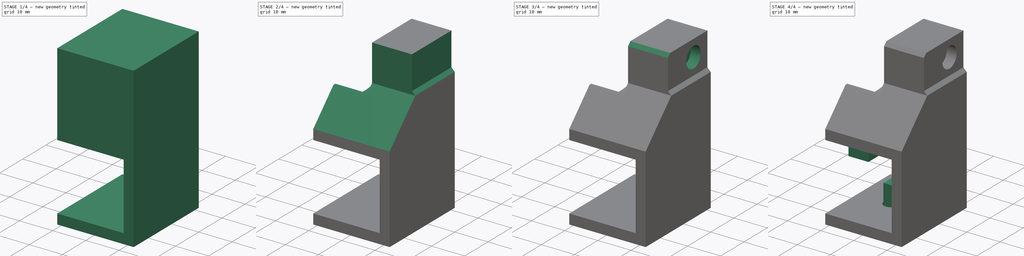
[diagram: build sequence overview — one tinted view per stage of 4, left to right]
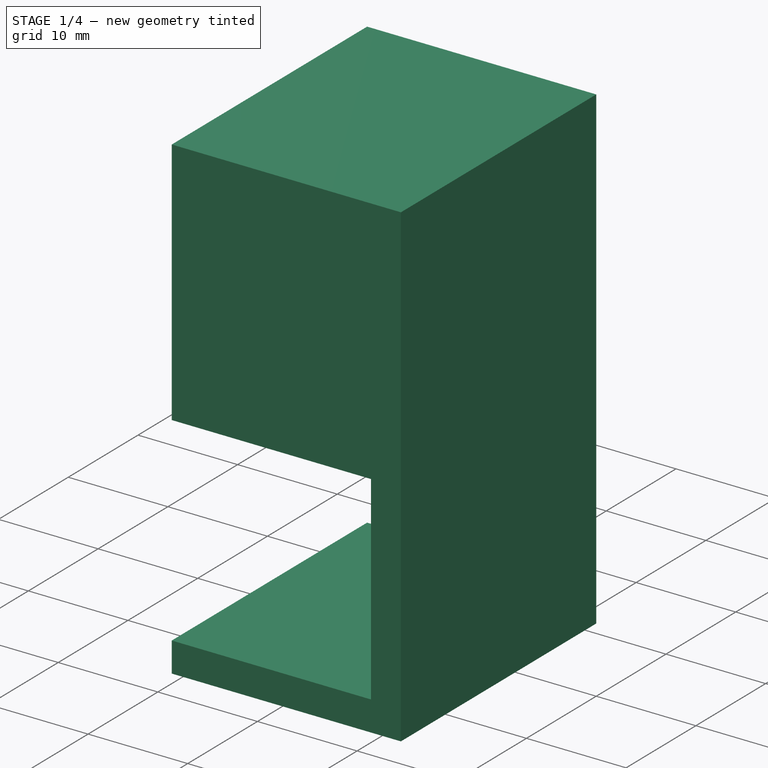
[diagram: stage 1 of 4 — iso view after this stage's code; geometry added in this stage tinted green]
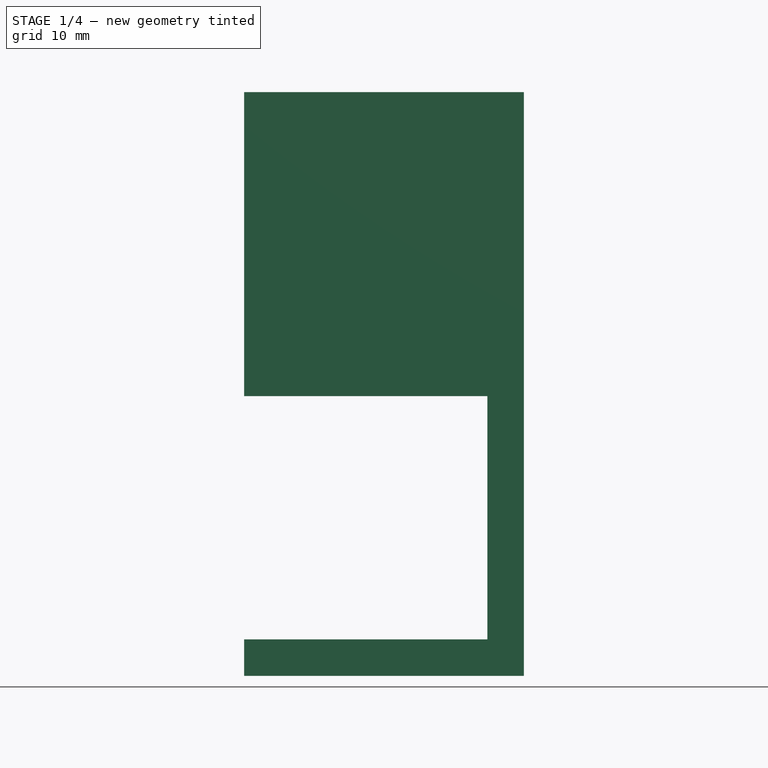
[diagram: stage 1 of 4 — front view after this stage's code; geometry added in this stage tinted green]
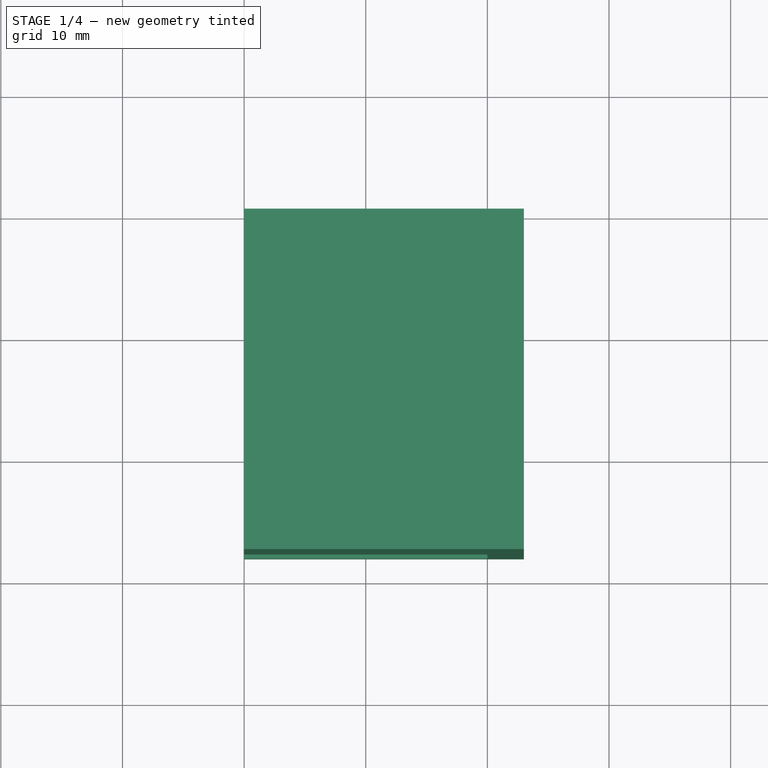
[diagram: stage 1 of 4 — top view after this stage's code; geometry added in this stage tinted green]
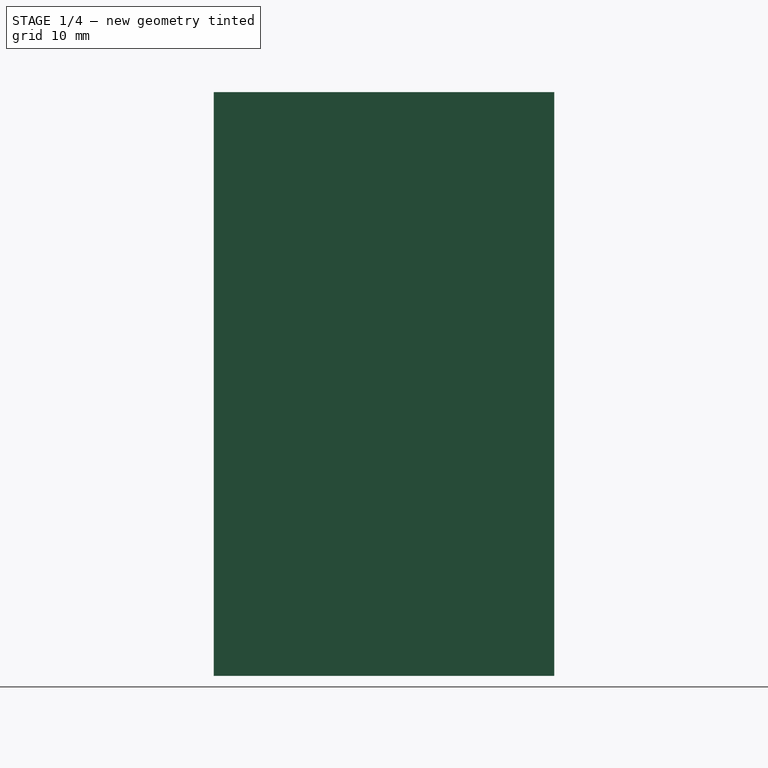
[diagram: stage 1 of 4 — right view after this stage's code; geometry added in this stage tinted green]
FCSTD DOCUMENT  (FreeCAD 0.14R3692 (Git))
Label: hinge-inner
License: CC-BY 3.0
LicenseURL: http://creativecommons.org/licenses/by/3.0/
objects: Sketcher::SketchObject×8, PartDesign::Pocket×6, PartDesign::Pad×2, Part::Feature×2, Part::Box×1, Part::Thickness×1, Part::Chamfer×1, App::DocumentObjectGroup×1
note: 29 computed .brp shape members not serialized (recipe doc carries the construction recipe); baked Part::Feature solids carry a one-line shape summary decoded from their .brp

FEATURE [Part::Box] Box  label="body-cube"
  Height = 20
  Length = 20
  Placement = pos=(0,-28,0) rot=(0,0,1;0rad)
  Width = 28
FEATURE [Part::Thickness] Thickness  label="body-hickness"
  Faces = -> Box [Face1,Face3,Face4]
  Intersection = false
  Join = 2
  Mode = 0
  SelfIntersection = false
  Value = 3
FEATURE [Sketcher::SketchObject] Sketch  label="hinge-body-sketch"
  Placement = pos=(0,0,23) rot=(0,0,1;0rad)
  Support = -> Thickness [Face10]
  sketch-geometry (4):
    g0: LineSegment StartX=0 StartY=0 StartZ=0 EndX=23 EndY=0 EndZ=0
    g1: LineSegment StartX=23 StartY=0 StartZ=0 EndX=23 EndY=-28 EndZ=0
    g2: LineSegment StartX=23 StartY=-28 StartZ=0 EndX=0 EndY=-28 EndZ=0
    g3: LineSegment StartX=0 StartY=-28 StartZ=0 EndX=0 EndY=0 EndZ=0
  constraints (11):
    c: Coincident(g0,g1)
    c: Coincident(g1,g2)
    c: Coincident(g2,g3)
    c: Coincident(g3,g0)
    c: Horizontal(g0)
    c: Horizontal(g2)
    c: Vertical(g1)
    c: Vertical(g3)
    c: Coincident(g0,g-1)
    c: DistanceX(g0) = 23
    c: DistanceY(g3) = 28
FEATURE [PartDesign::Pad] Pad  label="hinge-body-pad"
  Length = 22
  Length2 = 100
  Sketch = -> Sketch
  Type = 0
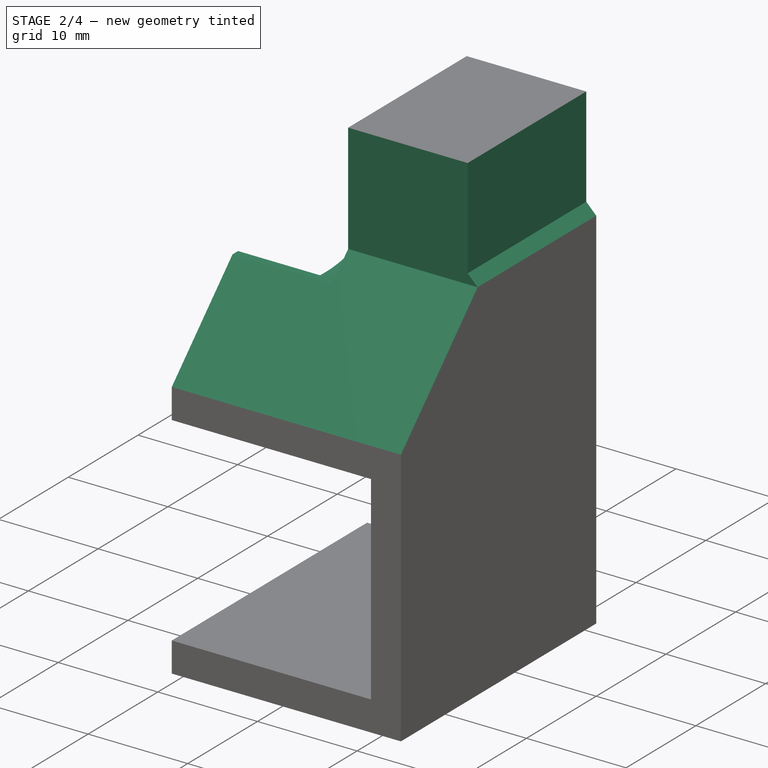
[diagram: stage 2 of 4 — iso view after this stage's code; geometry added in this stage tinted green]
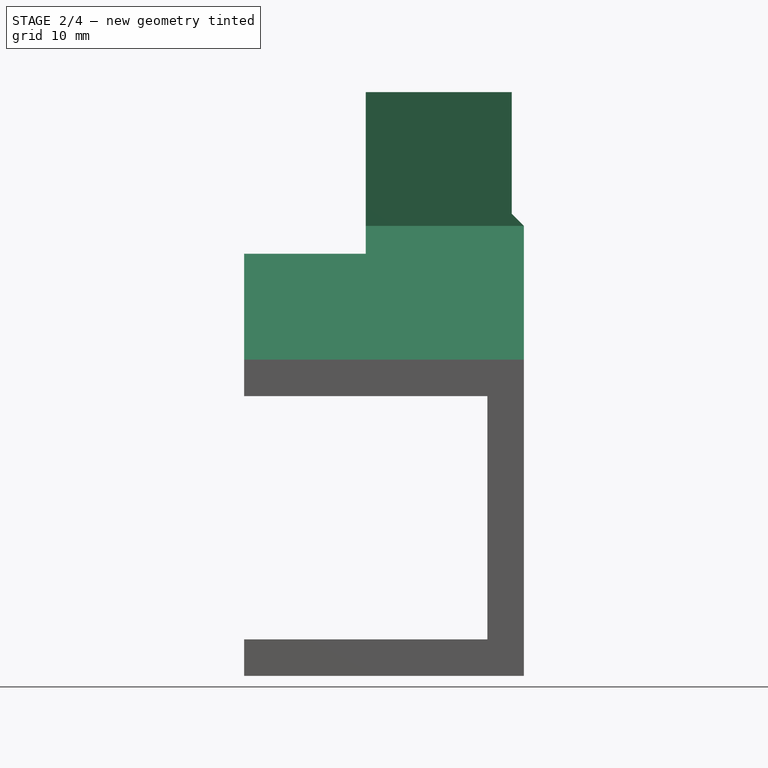
[diagram: stage 2 of 4 — front view after this stage's code; geometry added in this stage tinted green]
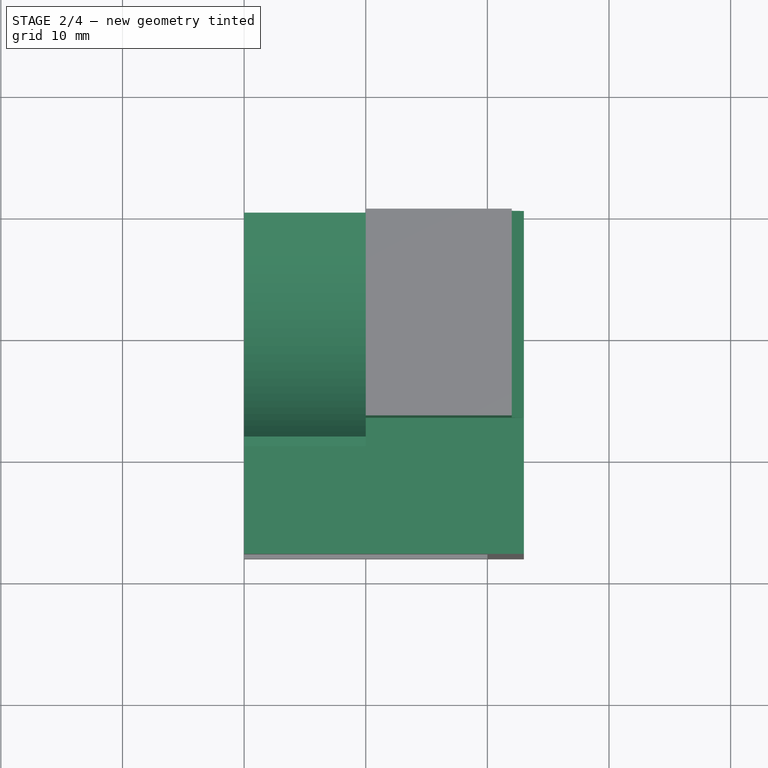
[diagram: stage 2 of 4 — top view after this stage's code; geometry added in this stage tinted green]
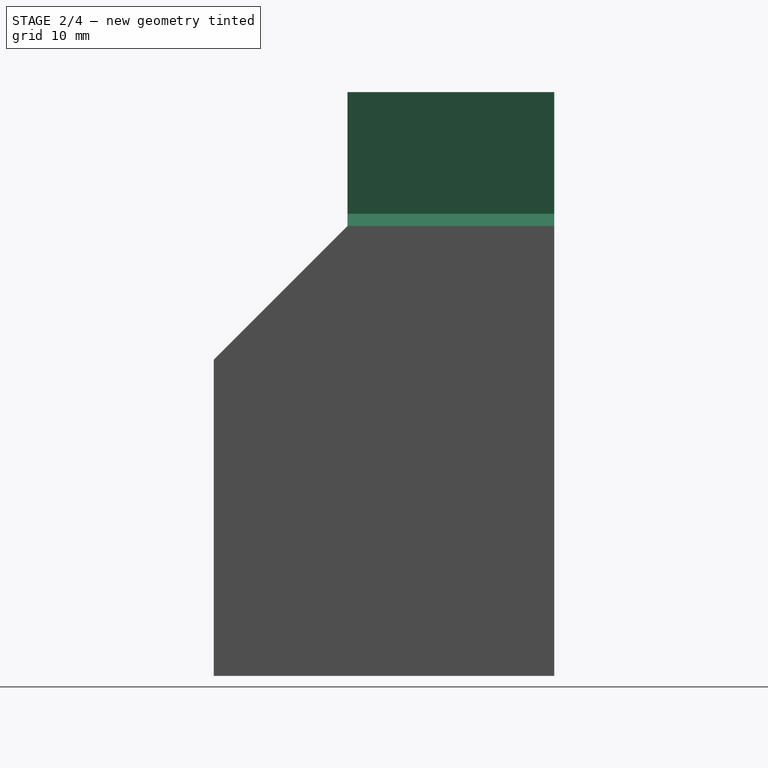
[diagram: stage 2 of 4 — right view after this stage's code; geometry added in this stage tinted green]
FEATURE [Sketcher::SketchObject] Sketch001  label="hinge-body-cutout-sketch"
  Placement = pos=(23,0,0) rot=(0.57735,0.57735,0.57735;2.0944rad)
  Support = -> Pad [Face13]
  sketch-geometry (4):
    g0: LineSegment StartX=-17 StartY=45 StartZ=0 EndX=-17 EndY=34 EndZ=0
    g1: LineSegment StartX=-17 StartY=34 StartZ=0 EndX=-28 EndY=23 EndZ=0
    g2: LineSegment StartX=-28 StartY=23 StartZ=0 EndX=-28 EndY=45 EndZ=0
    g3: LineSegment StartX=-28 StartY=45 StartZ=0 EndX=-17 EndY=45 EndZ=0
  constraints (12):
    c: Coincident(g0,g1)
    c: Coincident(g1,g2)
    c: Coincident(g2,g3)
    c: Coincident(g3,g0)
    c: Horizontal(g3)
    c: Vertical(g2)
    c: Angle(g0,g1) = 2.35619
    c: DistanceX(g-1,g2) = -28
    c: DistanceY(g-1,g2) = 45
    c: Vertical(g0)
    c: DistanceY(g2) = 22
    c: DistanceX(g3) = 11
FEATURE [PartDesign::Pocket] Pocket  label="hinge-body-cutout-pocket"
  Length = 23
  Sketch = -> Sketch001
  Type = 0
FEATURE [Sketcher::SketchObject] Sketch002  label="hinge-head-recess-sketch"
  Placement = pos=(0,0,0) rot=(0.57735,-0.57735,-0.57735;2.0944rad)
  Support = -> Pocket [Face12]
  sketch-geometry (3):
    g0: ArcOfCircle CenterX=6 CenterY=40 CenterZ=0 NormalX=0 NormalY=0 NormalZ=1 Radius=15 StartAngle=2.61681e-07 EndAngle=5.6975
    g1: LineSegment StartX=21 StartY=40 StartZ=0 EndX=21 EndY=31.7084 EndZ=0
    g2: LineSegment StartX=21 StartY=31.7084 StartZ=0 EndX=18.5 EndY=31.7084 EndZ=0
  constraints (10):
    c: DistanceY(g-1,g0) = 40
    c: DistanceX(g-1,g0) = 6
    c: Radius(g0) = 15
    c: Coincident(g1,g2)
    c: Vertical(g1)
    c: Horizontal(g2)
    c: Coincident(g1,g0)
    c: Coincident(g2,g0)
    c: Tangent(g1,g0)
    c: DistanceX(g2) = -2.5
FEATURE [PartDesign::Pocket] Pocket001  label="hinge-head-recess-pocket"
  Length = 10
  Sketch = -> Sketch002
  Type = 0
FEATURE [Sketcher::SketchObject] Sketch003  label="hinge-head-cutout-sketch"
  Placement = pos=(0,-17,0) rot=(1,0,0;1.5708rad)
  Support = -> Pocket001 [Face15]
  sketch-geometry (4):
    g0: LineSegment StartX=22 StartY=45 StartZ=0 EndX=23 EndY=45 EndZ=0
    g1: LineSegment StartX=23 StartY=45 StartZ=0 EndX=23 EndY=34 EndZ=0
    g2: LineSegment StartX=23 StartY=34 StartZ=0 EndX=22 EndY=35 EndZ=0
    g3: LineSegment StartX=22 StartY=35 StartZ=0 EndX=22 EndY=45 EndZ=0
  constraints (12):
    c: Coincident(g0,g1)
    c: Coincident(g1,g2)
    c: Coincident(g2,g3)
    c: Coincident(g3,g0)
    c: Horizontal(g0)
    c: Vertical(g1)
    c: Vertical(g3)
    c: DistanceY(g-1,g0) = 45
    c: DistanceY(g1) = -11
    c: DistanceX(g0) = 1
    c: DistanceX(g-1,g0) = 23
    c: Angle(g1,g2) = 0.785398
FEATURE [PartDesign::Pocket] Pocket006  label="hinge-head-cutout-pocket"
  Length = 17
  Sketch = -> Sketch003
  Type = 0
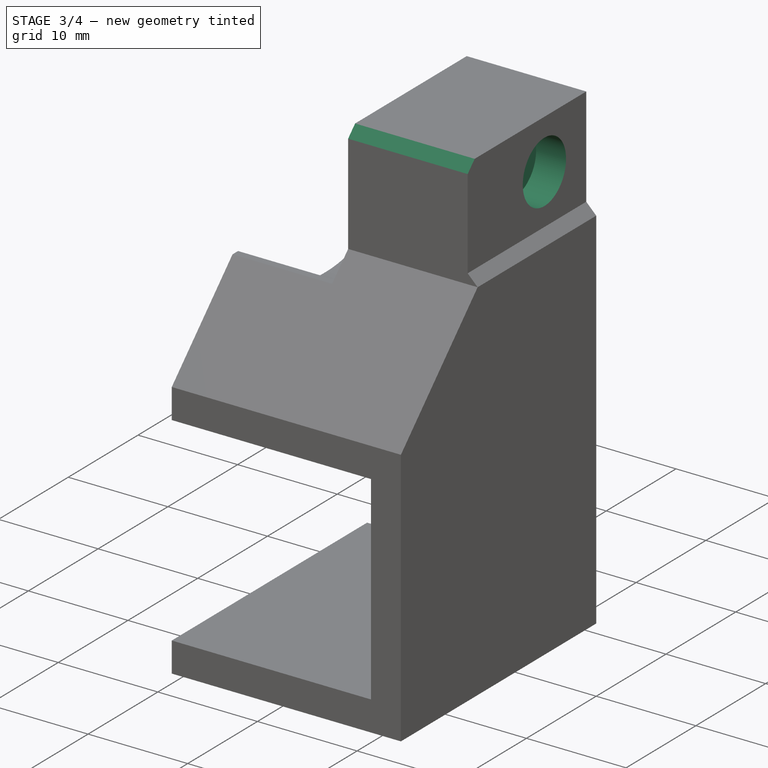
[diagram: stage 3 of 4 — iso view after this stage's code; geometry added in this stage tinted green]
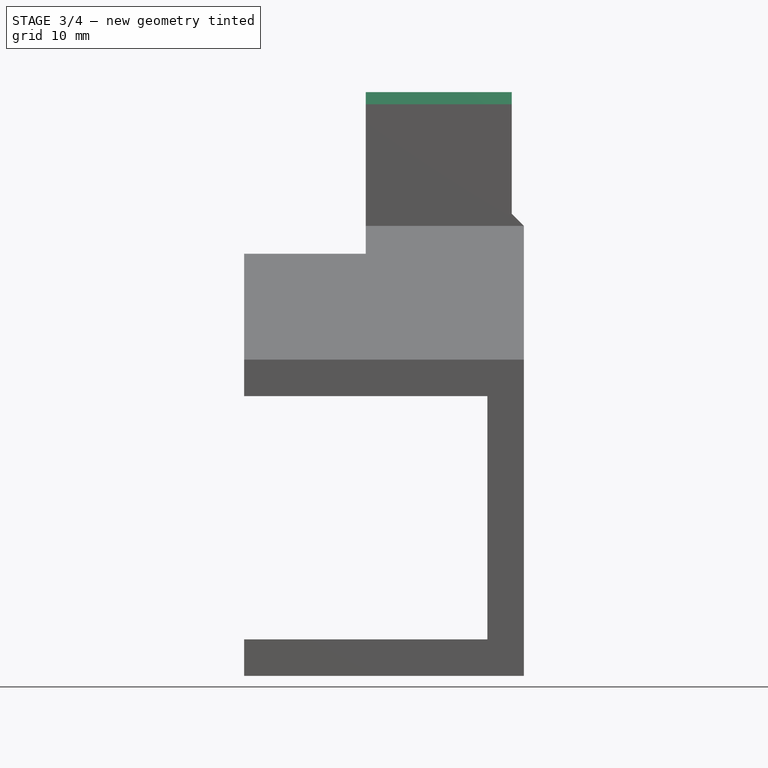
[diagram: stage 3 of 4 — front view after this stage's code; geometry added in this stage tinted green]
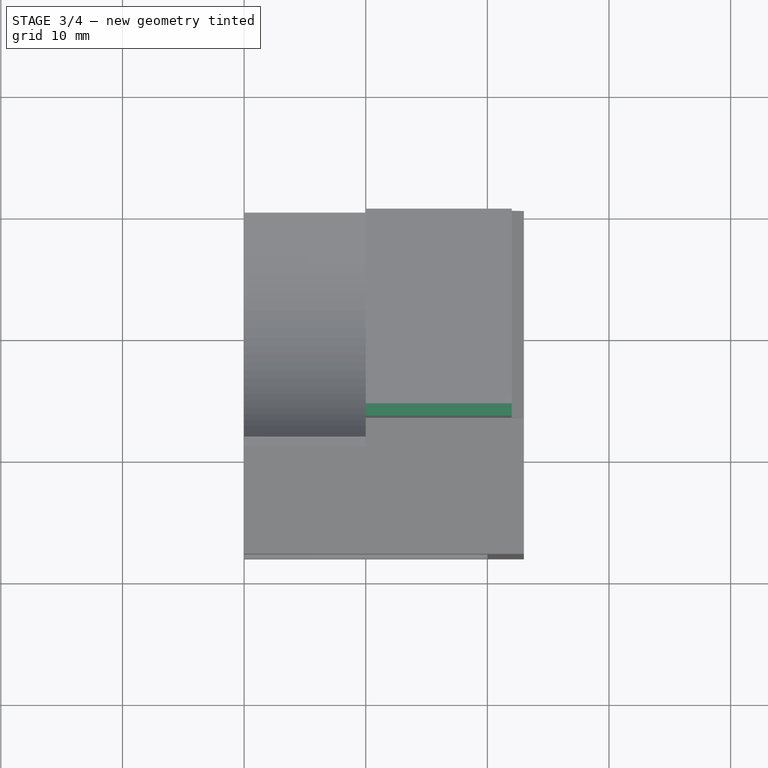
[diagram: stage 3 of 4 — top view after this stage's code; geometry added in this stage tinted green]
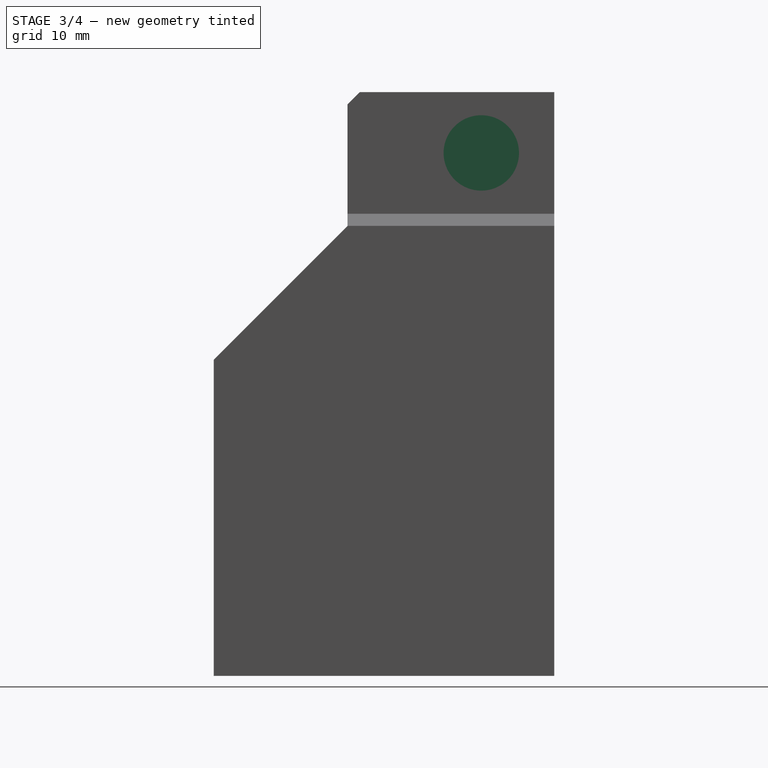
[diagram: stage 3 of 4 — right view after this stage's code; geometry added in this stage tinted green]
FEATURE [Part::Chamfer] Chamfer  label="hinge-head-chamfer"
  Base = -> Pocket006
  Edges = 1 edges r=1: [Edge45]
FEATURE [Sketcher::SketchObject] Sketch004  label="hinge-screw-head-sketch"
  Placement = pos=(22,0,0) rot=(0.57735,0.57735,0.57735;2.0944rad)
  Support = -> Chamfer [Face9]
  sketch-geometry (1):
    g0: Circle CenterX=-6 CenterY=40 CenterZ=0 NormalX=0 NormalY=0 NormalZ=1 Radius=3.1
  constraints (3):
    c: DistanceY(g-1,g0) = 40
    c: DistanceX(g-1,g0) = -6
    c: Radius(g0) = 3.1
FEATURE [PartDesign::Pocket] Pocket003  label="hinge-screw-head-pocket"
  Length = 3
  Sketch = -> Sketch004
  Type = 0
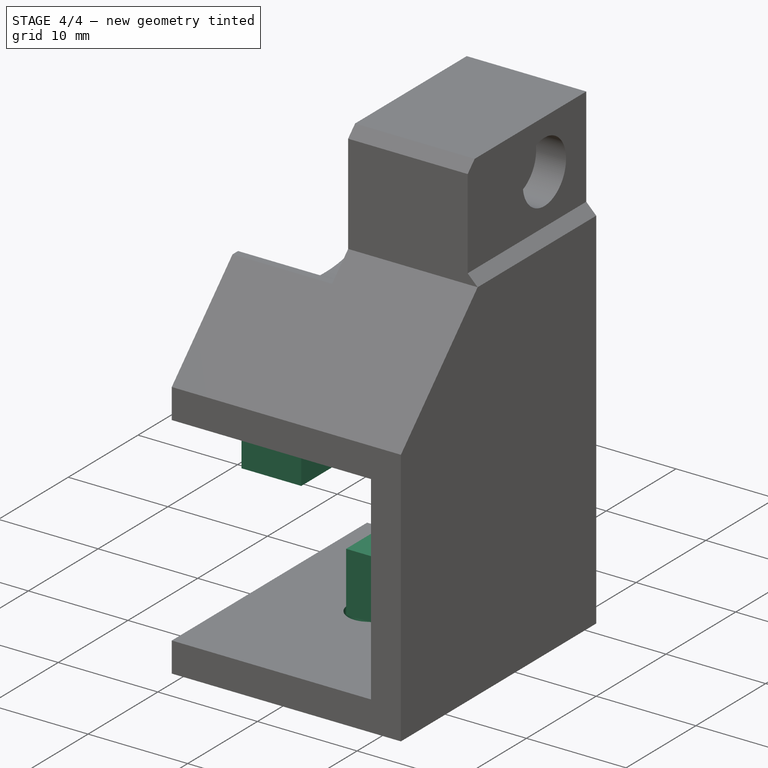
[diagram: stage 4 of 4 — iso view after this stage's code; geometry added in this stage tinted green]
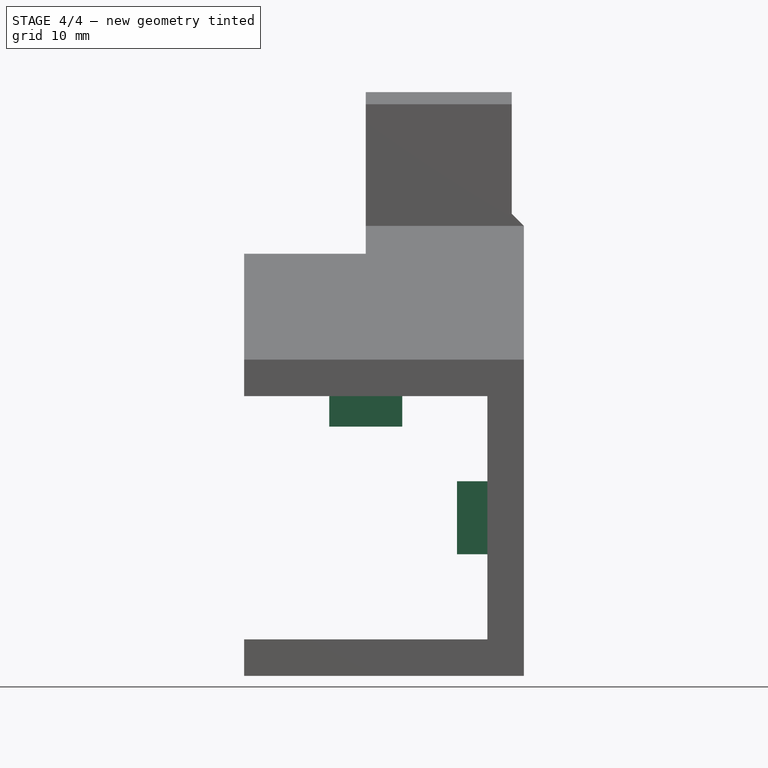
[diagram: stage 4 of 4 — front view after this stage's code; geometry added in this stage tinted green]
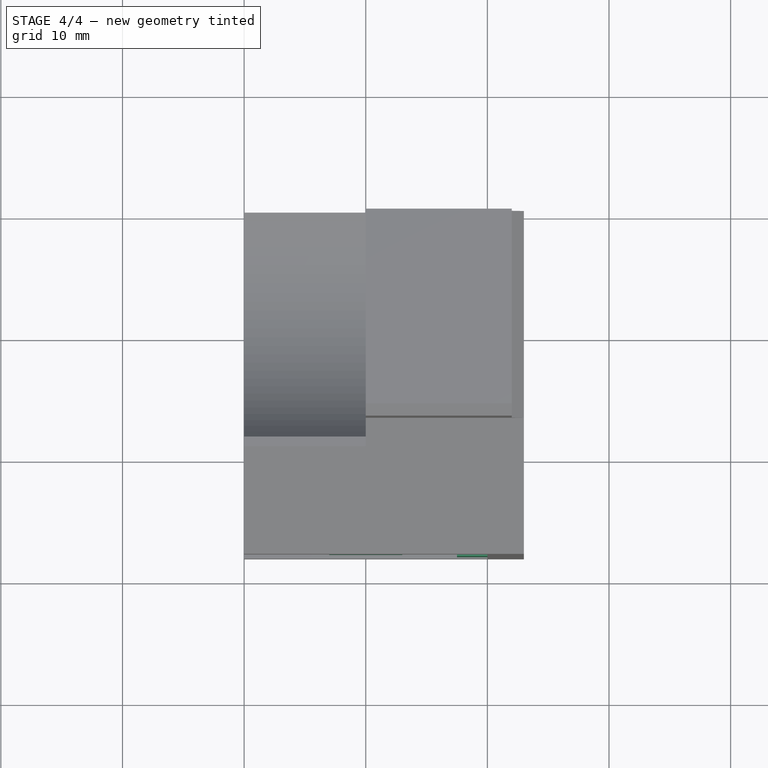
[diagram: stage 4 of 4 — top view after this stage's code; geometry added in this stage tinted green]
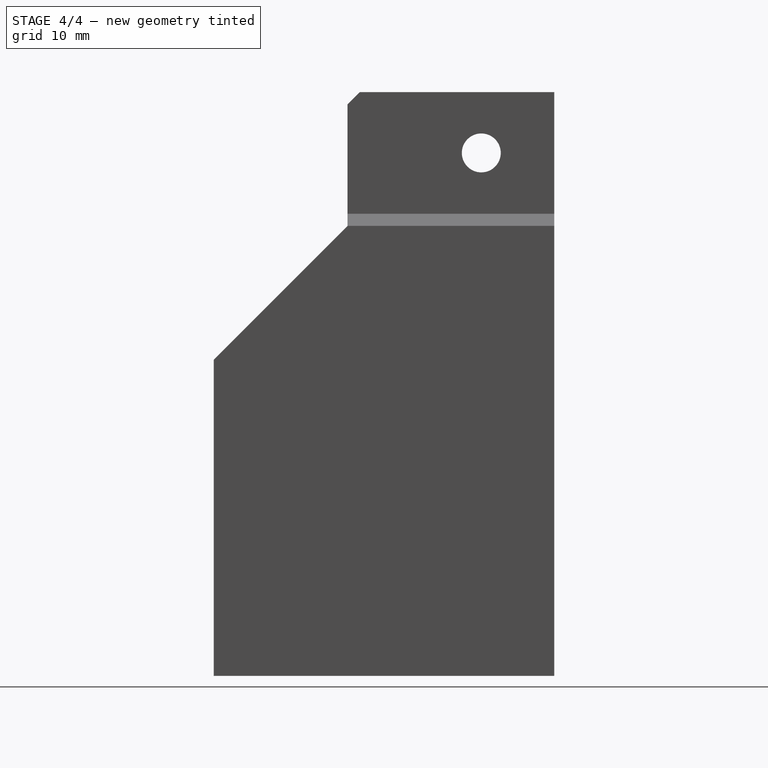
[diagram: stage 4 of 4 — right view after this stage's code; geometry added in this stage tinted green]
FEATURE [Sketcher::SketchObject] Sketch005  label="hinge-screw-hole-sketch"
  Placement = pos=(19,0,0) rot=(0.57735,0.57735,0.57735;2.0944rad)
  Support = -> Pocket003 [Face23]
  sketch-geometry (1):
    g0: Circle CenterX=-6 CenterY=40 CenterZ=0 NormalX=0 NormalY=0 NormalZ=1 Radius=1.6
  constraints (3):
    c: DistanceY(g-1,g0) = 40
    c: DistanceX(g-1,g0) = -6
    c: Radius(g0) = 1.6
FEATURE [PartDesign::Pocket] Pocket004  label="hinge-screw-hole-pocket"
  Length = 9
  Sketch = -> Sketch005
  Type = 0
FEATURE [Sketcher::SketchObject] Sketch006  label="slot-left-bottom-guides-sketch"
  Placement = pos=(0,-28,0) rot=(1,0,0;1.5708rad)
  Support = -> Pocket004 [Face14]
  sketch-geometry (8):
    g0: LineSegment StartX=7 StartY=20 StartZ=0 EndX=13 EndY=20 EndZ=0
    g1: LineSegment StartX=13 StartY=20 StartZ=0 EndX=13 EndY=17.5 EndZ=0
    g2: LineSegment StartX=13 StartY=17.5 StartZ=0 EndX=7 EndY=17.5 EndZ=0
    g3: LineSegment StartX=7 StartY=17.5 StartZ=0 EndX=7 EndY=20 EndZ=0
    g4: LineSegment StartX=17.5 StartY=13 StartZ=0 EndX=20 EndY=13 EndZ=0
    g5: LineSegment StartX=20 StartY=13 StartZ=0 EndX=20 EndY=7 EndZ=0
    g6: LineSegment StartX=20 StartY=7 StartZ=0 EndX=17.5 EndY=7 EndZ=0
    g7: LineSegment StartX=17.5 StartY=7 StartZ=0 EndX=17.5 EndY=13 EndZ=0
  constraints (24):
    c: Coincident(g0,g1)
    c: Coincident(g1,g2)
    c: Coincident(g2,g3)
    c: Coincident(g3,g0)
    c: Horizontal(g0)
    c: Horizontal(g2)
    c: Vertical(g1)
    c: Vertical(g3)
    c: Coincident(g4,g5)
    c: Coincident(g5,g6)
    c: Coincident(g6,g7)
    c: Coincident(g7,g4)
    c: Horizontal(g4)
    c: Horizontal(g6)
    c: Vertical(g5)
    c: Vertical(g7)
    c: DistanceX(g4) = 2.5
    c: DistanceY(g7) = 6
    c: DistanceX(g-1,g0) = 7
    c: DistanceY(g-1,g0) = 20
    c: DistanceY(g-1,g5) = 7
    c: DistanceX(g-1,g5) = 20
    c: Equal(g7,g2)
    c: Equal(g4,g1)
FEATURE [PartDesign::Pad] Pad001  label="slot-left-bottom-guides-pad"
  Length = 28
  Length2 = 100
  Reversed = true
  Sketch = -> Sketch006
  Type = 0
FEATURE [Sketcher::SketchObject] Sketch007  label="slot-left-bottom-screw-hole-sketch"
  Placement = pos=(0,0,-3) rot=(1,0,0;3.14159rad)
  Support = -> Pad001 [Face24]
  sketch-geometry (1):
    g0: Circle CenterX=10 CenterY=14 CenterZ=0 NormalX=0 NormalY=0 NormalZ=1 Radius=2.1
  constraints (3):
    c: DistanceX(g-1,g0) = 10
    c: DistanceY(g-1,g0) = 14
    c: Radius(g0) = 2.1
FEATURE [PartDesign::Pocket] Pocket005  label="slot-left-bottom-screw-hole-pocket"
  Length = 3
  Sketch = -> Sketch007
  Type = 0
FEATURE [Part::Feature] Pocket005001  label="hinge-inner-left"
  shape: bbox 23 x 28 x 48 mm, 30 faces (baked)
FEATURE [Part::Feature] Part__Feature001  label="extrusion-p20n6b-300-bottom-left"
  Placement = pos=(10,-162,10) rot=(-1,0,0;1.5708rad)
  shape: bbox 20 x 300 x 20 mm, 154 faces (baked)
FEATURE [App::DocumentObjectGroup] Grupo  label="aux"
  Group = -> [Part__Feature001]
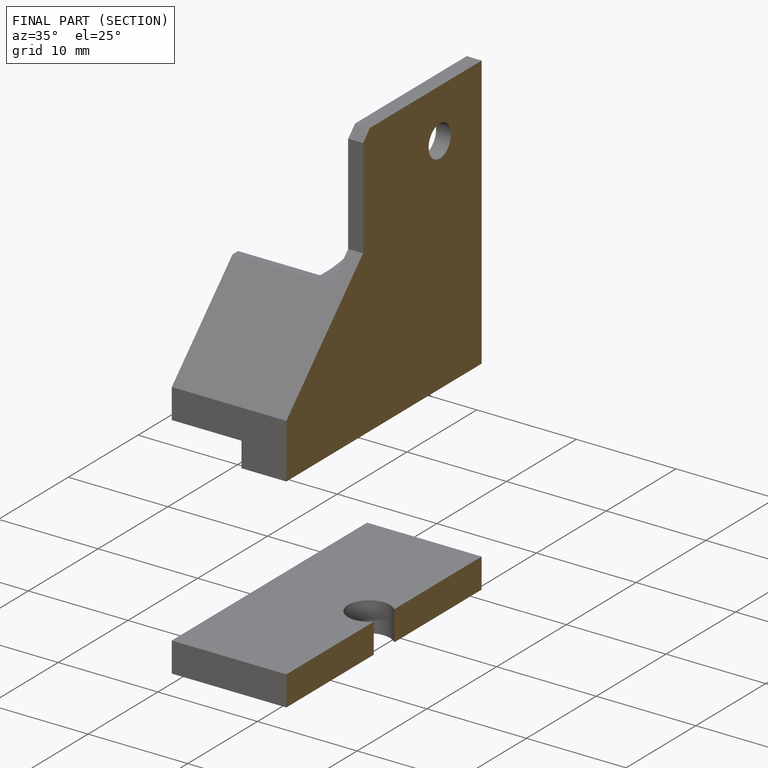
[diagram: finished part — half-section view (interior)]
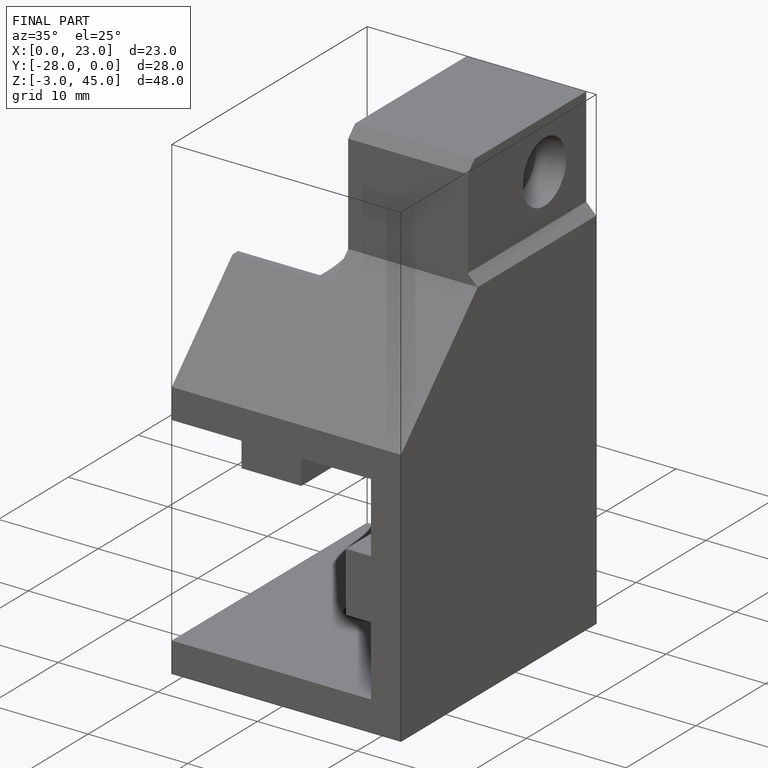
[diagram: finished part — iso view with bounding-box wireframe]
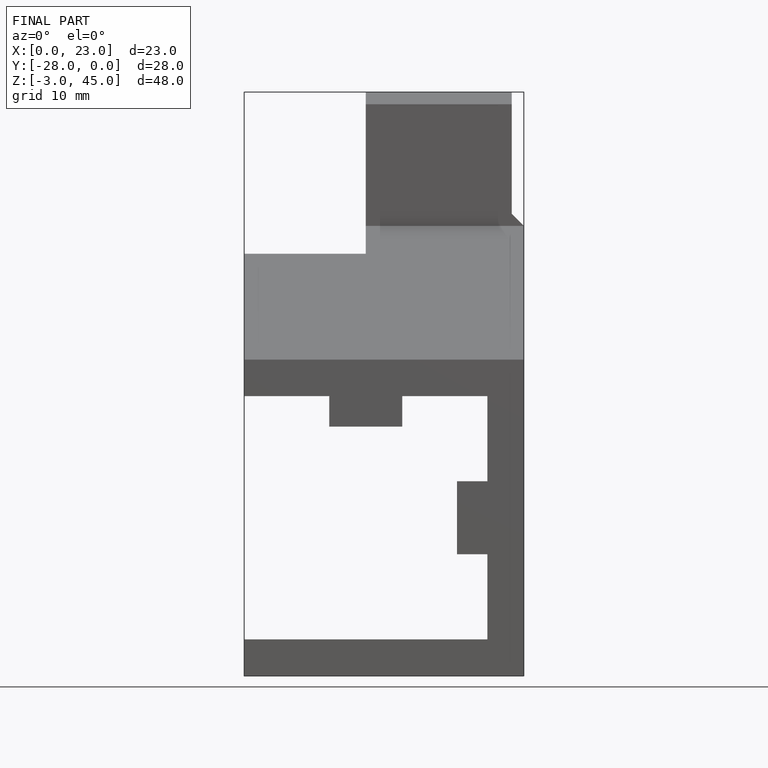
[diagram: finished part — front view with bounding-box wireframe]
